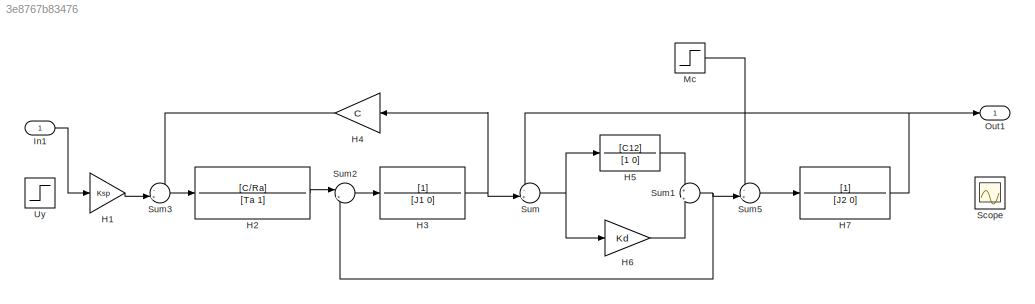
MODEL slx_3e8767b83476
KIND model
CONFIG AbsTol = auto
CONFIG EnableMultiTasking = off
CONFIG FixedStep = auto
CONFIG MaxStep = auto
CONFIG MinStep = auto
CONFIG RelTol = 1e-3
CONFIG SampleTimeConstraint = Unconstrained
CONFIG SolverName = VariableStepAuto
CONFIG StartTime = 0.0
CONFIG StopTime = 10.0
BLOCK [Gain] H1
  Gain = Ksp
BLOCK [TransferFcn] H2
  Denominator = [Ta 1]
  Numerator = [C/Ra]
BLOCK [TransferFcn] H3
  Denominator = [J1 0]
BLOCK [Gain] H4
  Gain = C
BLOCK [TransferFcn] H5
  Denominator = [1 0]
  Numerator = [C12]
BLOCK [Gain] H6
  Gain = Kd
BLOCK [TransferFcn] H7
  Denominator = [J2 0]
BLOCK [Inport] In1
BLOCK [Step] Mc
  After = 10
  SampleTime = 0
  Time = 5
BLOCK [Outport] Out1
BLOCK [Scope] Scope
  Floating = off
  NumInputPorts = 1
  Ports = [1]
  ScopeSpecificationString = Simulink.scopes.TimeScopeBlockCfg('CurrentConfiguration', extmgr.ConfigurationSet(extmgr.Configuration('Core','General UI',true),extmgr.Configuration('Core','Source UI',true),extmgr.Configuration('Sources','WiredSimulink',true),extmgr.Configuration('Visuals','Time Domain',true,'SerializedDisplays',{struct('MinYLimReal','-12.57843','MaxYLimReal','113.20584','YLabelReal','','MinYLimMag','0.00000','M...<+1551ch>
BLOCK [Sum] Sum
  Inputs = -+|
  Ports = [2, 1]
BLOCK [Sum] Sum1
  Inputs = +|+
  Ports = [2, 1]
BLOCK [Sum] Sum2
  Inputs = |+-
  Ports = [2, 1]
BLOCK [Sum] Sum3
  Inputs = -+|
  Ports = [2, 1]
BLOCK [Sum] Sum5
  Inputs = -+|
  Ports = [2, 1]
BLOCK [Step] Uy
  After = 10
  SampleTime = 0
  Time = 0
LINE H1:1 -> Sum3:2
LINE H2:1 -> Sum2:1
NET H3:1 -> H4:1, Sum:2
LINE H4:1 -> Sum3:1
LINE H5:1 -> Sum1:1
LINE H6:1 -> Sum1:2
NET H7:1 -> Out1:1, Sum:1
LINE In1:1 -> H1:1
LINE Mc:1 -> Sum5:1
NET Sum1:1 -> Sum2:2, Sum5:2
LINE Sum2:1 -> H3:1
LINE Sum3:1 -> H2:1
LINE Sum5:1 -> H7:1
NET Sum:1 -> H5:1, H6:1
note: NET lines group one-source signal fan-out (src -> all destinations, sorted); 1:1 wires keep LINE
